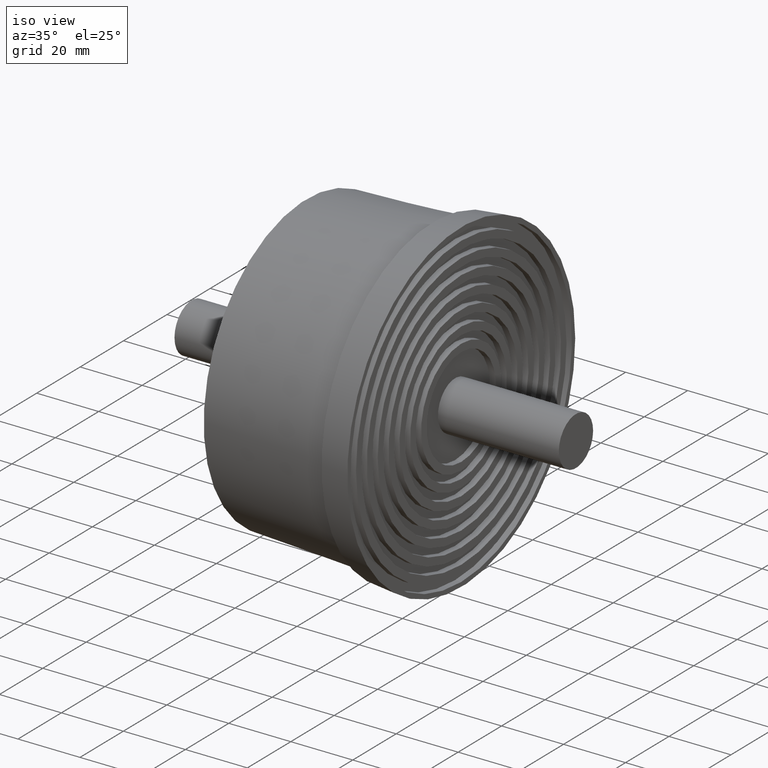
[diagram: clean part render]
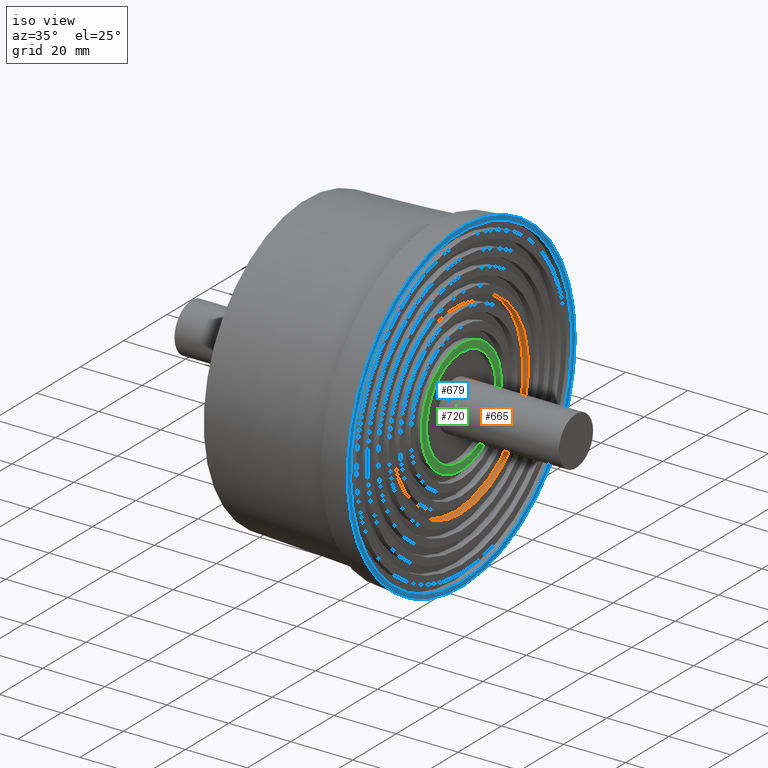
[diagram: same view with three faces highlighted in distinct colors, each labeled with its STEP entity id]
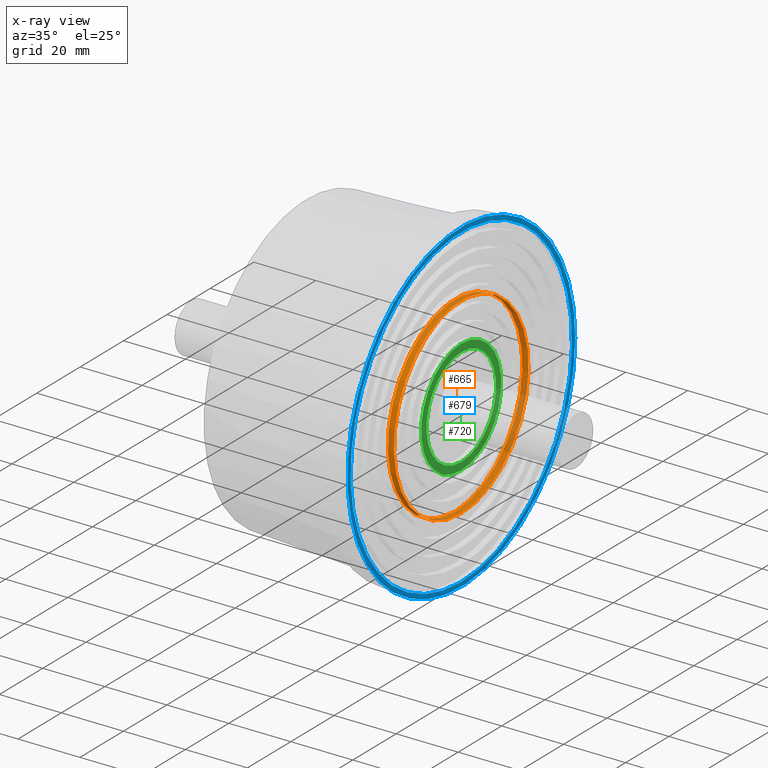
[diagram: x-ray of the same camera — body ghosted, the three highlighted faces saturated]
A machine part, iso view with three faces highlighted in distinct colors.
The next image is the same camera in x-ray (body ghosted, the three faces saturated) — at least one of them is partly hidden behind the body in this view.
Their STEP definitions:

[orange] entity #665 — the highlighted cylindrical surface (bore or boss wall) has radius 31 mm, axis along (-1, 0, 0).
#59=FACE_BOUND('',#197,.T.);
#122=FACE_OUTER_BOUND('',#196,.T.);
#196=EDGE_LOOP('',(#516));
#197=EDGE_LOOP('',(#517));
#319=CIRCLE('',#746,31.);
#320=CIRCLE('',#747,31.);
#383=VERTEX_POINT('',#1149);
#384=VERTEX_POINT('',#1151);
#447=EDGE_CURVE('',#383,#383,#319,.T.);
#448=EDGE_CURVE('',#384,#384,#320,.T.);
#516=ORIENTED_EDGE('',*,*,#447,.T.);
#517=ORIENTED_EDGE('',*,*,#448,.F.);
#632=CYLINDRICAL_SURFACE('',#745,31.);
#665=ADVANCED_FACE('',(#122,#59),#632,.F.);
#745=AXIS2_PLACEMENT_3D('',#1148,#898,#899);
#746=AXIS2_PLACEMENT_3D('',#1150,#900,#901);
#747=AXIS2_PLACEMENT_3D('',#1152,#902,#903);
#898=DIRECTION('center_axis',(-1.,0.,0.));
#899=DIRECTION('ref_axis',(0.,0.,1.));
#900=DIRECTION('center_axis',(-1.,-2.40506373542991E-32,0.));
#901=DIRECTION('ref_axis',(0.,0.,1.));
#902=DIRECTION('center_axis',(-1.,-2.40506373542991E-32,0.));
#903=DIRECTION('ref_axis',(0.,0.,1.));
#1148=CARTESIAN_POINT('Origin',(25.,7.09493801951824E-31,0.));
#1149=CARTESIAN_POINT('',(23.,3.7964050773568E-15,-31.));
#1150=CARTESIAN_POINT('Origin',(23.,7.09493801951824E-31,0.));
#1151=CARTESIAN_POINT('',(25.,3.7964050773568E-15,-31.));
#1152=CARTESIAN_POINT('Origin',(25.,7.09493801951824E-31,0.));

[blue] entity #679 — the highlighted planar face has unit normal (1, 0, 0).
#25=PLANE('',#777);
#73=FACE_BOUND('',#225,.T.);
#136=FACE_OUTER_BOUND('',#224,.T.);
#224=EDGE_LOOP('',(#544));
#225=EDGE_LOOP('',(#545));
#336=CIRCLE('',#775,51.);
#337=CIRCLE('',#778,52.5);
#400=VERTEX_POINT('',#1195);
#401=VERTEX_POINT('',#1199);
#464=EDGE_CURVE('',#400,#400,#336,.T.);
#465=EDGE_CURVE('',#401,#401,#337,.T.);
#544=ORIENTED_EDGE('',*,*,#465,.T.);
#545=ORIENTED_EDGE('',*,*,#464,.T.);
#679=ADVANCED_FACE('',(#136,#73),#25,.T.);
#775=AXIS2_PLACEMENT_3D('',#1196,#958,#959);
#777=AXIS2_PLACEMENT_3D('',#1198,#962,#963);
#778=AXIS2_PLACEMENT_3D('',#1200,#964,#965);
#958=DIRECTION('center_axis',(-1.,-2.40506373542991E-32,0.));
#959=DIRECTION('ref_axis',(0.,0.,1.));
#962=DIRECTION('center_axis',(1.,2.40506373542991E-32,0.));
#963=DIRECTION('ref_axis',(0.,0.,-1.));
#964=DIRECTION('center_axis',(1.,2.40506373542991E-32,0.));
#965=DIRECTION('ref_axis',(0.,0.,-1.));
#1195=CARTESIAN_POINT('',(25.,6.2456986756515E-15,-51.));
#1196=CARTESIAN_POINT('Origin',(25.,7.09493801951824E-31,0.));
#1198=CARTESIAN_POINT('Origin',(25.,9.18485099360515E-15,0.));
#1199=CARTESIAN_POINT('',(25.,52.5,0.));
#1200=CARTESIAN_POINT('Origin',(25.,1.20253186771496E-30,0.));

[green] entity #720 — the highlighted planar face has unit normal (1, 0, 0).
#49=PLANE('',#851);
#112=FACE_BOUND('',#305,.T.);
#177=FACE_OUTER_BOUND('',#304,.T.);
#304=EDGE_LOOP('',(#624));
#305=EDGE_LOOP('',(#625));
#307=CIRCLE('',#725,16.);
#310=CIRCLE('',#730,18.5);
#371=VERTEX_POINT('',#1116);
#374=VERTEX_POINT('',#1124);
#435=EDGE_CURVE('',#371,#371,#307,.T.);
#438=EDGE_CURVE('',#374,#374,#310,.T.);
#624=ORIENTED_EDGE('',*,*,#438,.T.);
#625=ORIENTED_EDGE('',*,*,#435,.T.);
#720=ADVANCED_FACE('',(#177,#112),#49,.T.);
#725=AXIS2_PLACEMENT_3D('',#1117,#858,#859);
#730=AXIS2_PLACEMENT_3D('',#1125,#868,#869);
#851=AXIS2_PLACEMENT_3D('',#1305,#1110,#1111);
#858=DIRECTION('center_axis',(-1.,-2.40506373542991E-32,0.));
#859=DIRECTION('ref_axis',(0.,0.,1.));
#868=DIRECTION('center_axis',(1.,2.40506373542991E-32,0.));
#869=DIRECTION('ref_axis',(0.,0.,1.));
#1110=DIRECTION('center_axis',(1.,2.40506373542991E-32,0.));
#1111=DIRECTION('ref_axis',(0.,0.,-1.));
#1116=CARTESIAN_POINT('',(25.,1.95943487863577E-15,-16.));
#1117=CARTESIAN_POINT('Origin',(25.,7.09493801951824E-31,0.));
#1124=CARTESIAN_POINT('',(25.,2.2655965784226E-15,-18.5));
#1125=CARTESIAN_POINT('Origin',(25.,7.09493801951824E-31,0.));
#1305=CARTESIAN_POINT('Origin',(25.,9.18485099360515E-15,0.));